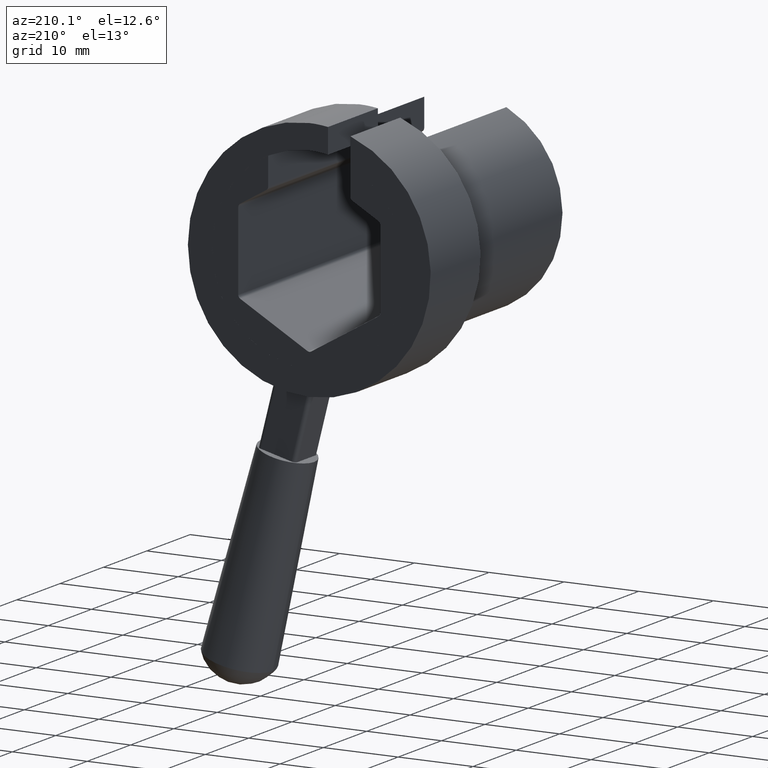
[diagram: clean part render]
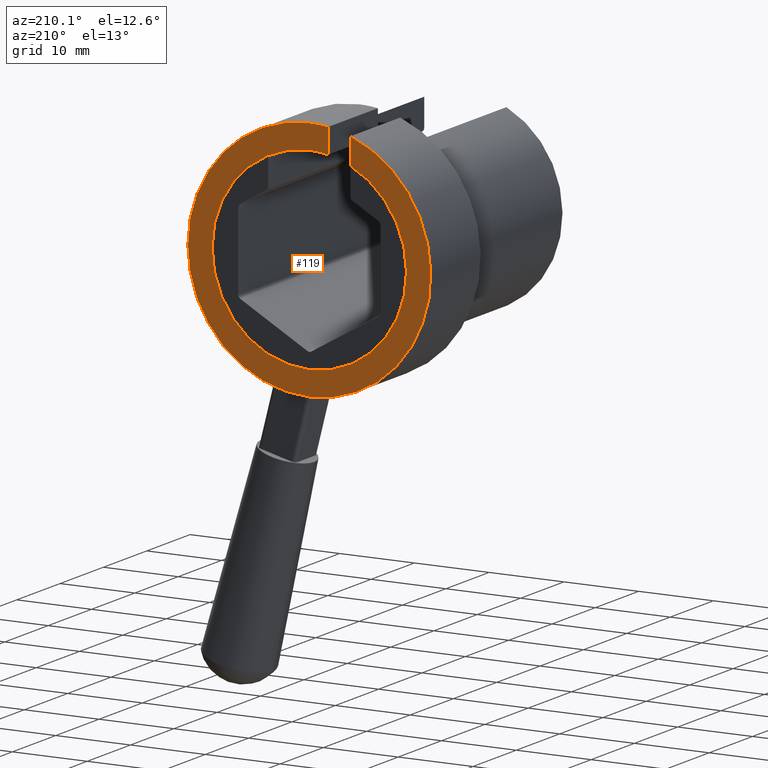
[diagram: same view with one face highlighted and labeled with its STEP entity id]
A machine part, auxiliary view. The second image highlights one B-rep face of the part: STEP entity #119.
In plain terms, the highlighted planar face has unit normal (0, 1, 0).
Its self-contained STEP definition (entity closure, byte-faithful):
#7 = EDGE_CURVE ( 'NONE', #8, #86, #461, .T. ) ;
#8 = VERTEX_POINT ( 'NONE', #450 ) ;
#20 = ORIENTED_EDGE ( 'NONE', *, *, #95, .T. ) ;
#23 = EDGE_CURVE ( 'NONE', #60, #104, #432, .T. ) ;
#34 = EDGE_CURVE ( 'NONE', #35, #88, #528, .T. ) ;
#35 = VERTEX_POINT ( 'NONE', #561 ) ;
#39 = EDGE_CURVE ( 'NONE', #86, #35, #558, .T. ) ;
#52 = ORIENTED_EDGE ( 'NONE', *, *, #100, .T. ) ;
#60 = VERTEX_POINT ( 'NONE', #607 ) ;
#61 = EDGE_CURVE ( 'NONE', #73, #60, #620, .T. ) ;
#63 = EDGE_CURVE ( 'NONE', #93, #73, #589, .T. ) ;
#73 = VERTEX_POINT ( 'NONE', #590 ) ;
#86 = VERTEX_POINT ( 'NONE', #635 ) ;
#88 = VERTEX_POINT ( 'NONE', #640 ) ;
#93 = VERTEX_POINT ( 'NONE', #656 ) ;
#95 = EDGE_CURVE ( 'NONE', #88, #93, #654, .T. ) ;
#100 = EDGE_CURVE ( 'NONE', #104, #8, #660, .T. ) ;
#104 = VERTEX_POINT ( 'NONE', #669 ) ;
#109 = ORIENTED_EDGE ( 'NONE', *, *, #23, .T. ) ;
#118 = EDGE_LOOP ( 'NONE', ( #20, #217, #218, #109, #52, #152, #166, #153 ) ) ;
#119 = ADVANCED_FACE ( 'NONE', ( #732 ), #728, .T. ) ;
#152 = ORIENTED_EDGE ( 'NONE', *, *, #7, .T. ) ;
#153 = ORIENTED_EDGE ( 'NONE', *, *, #34, .T. ) ;
#166 = ORIENTED_EDGE ( 'NONE', *, *, #39, .T. ) ;
#217 = ORIENTED_EDGE ( 'NONE', *, *, #63, .T. ) ;
#218 = ORIENTED_EDGE ( 'NONE', *, *, #61, .T. ) ;
#429 = DIRECTION ( 'NONE',  ( 0.0000000000000000000, 0.0000000000000000000, 1.000000000000000000 ) ) ;
#430 = VECTOR ( 'NONE', #429, 1000.000000000000000 ) ;
#431 = CARTESIAN_POINT ( 'NONE',  ( -2.500000000000000000, 35.99899999999999500, 12.75735082217307500 ) ) ;
#432 = LINE ( 'NONE', #431, #430 ) ;
#450 = CARTESIAN_POINT ( 'NONE',  ( 0.0000000000000000000, 35.99899999999999500, 16.24000000000000600 ) ) ;
#451 = DIRECTION ( 'NONE',  ( 0.0000000000000000000, 0.0000000000000000000, 1.000000000000000000 ) ) ;
#452 = DIRECTION ( 'NONE',  ( 0.0000000000000000000, 1.000000000000000000, 0.0000000000000000000 ) ) ;
#459 = CARTESIAN_POINT ( 'NONE',  ( 0.0000000000000000000, 35.99899999999999500, 0.0000000000000000000 ) ) ;
#460 = AXIS2_PLACEMENT_3D ( 'NONE', #459, #452, #451 ) ;
#461 = CIRCLE ( 'NONE', #460, 16.24000000000000600 ) ;
#527 = CARTESIAN_POINT ( 'NONE',  ( -5.500000000000001800, 35.99899999999999500, 11.77921898938974700 ) ) ;
#528 = LINE ( 'NONE', #527, #563 ) ;
#544 = DIRECTION ( 'NONE',  ( 0.0000000000000000000, 0.0000000000000000000, 1.000000000000000000 ) ) ;
#545 = DIRECTION ( 'NONE',  ( 0.0000000000000000000, 1.000000000000000000, 0.0000000000000000000 ) ) ;
#546 = AXIS2_PLACEMENT_3D ( 'NONE', #560, #545, #544 ) ;
#558 = CIRCLE ( 'NONE', #546, 16.24000000000000600 ) ;
#560 = CARTESIAN_POINT ( 'NONE',  ( 0.0000000000000000000, 35.99899999999999500, 0.0000000000000000000 ) ) ;
#561 = CARTESIAN_POINT ( 'NONE',  ( -5.500000000000005300, 35.99899999999999500, 15.28030104415486100 ) ) ;
#562 = DIRECTION ( 'NONE',  ( 0.0000000000000000000, 0.0000000000000000000, -1.000000000000000000 ) ) ;
#563 = VECTOR ( 'NONE', #562, 1000.000000000000000 ) ;
#586 = DIRECTION ( 'NONE',  ( 0.0000000000000000000, -1.000000000000000000, 0.0000000000000000000 ) ) ;
#587 = CARTESIAN_POINT ( 'NONE',  ( 0.0000000000000000000, 35.99899999999999500, 0.0000000000000000000 ) ) ;
#588 = AXIS2_PLACEMENT_3D ( 'NONE', #587, #586, #632 ) ;
#589 = CIRCLE ( 'NONE', #588, 13.00000000000000200 ) ;
#590 = CARTESIAN_POINT ( 'NONE',  ( 0.0000000000000000000, 35.99899999999999500, 13.00000000000000200 ) ) ;
#607 = CARTESIAN_POINT ( 'NONE',  ( -2.500000000000000000, 35.99899999999999500, 12.75735082217307500 ) ) ;
#609 = DIRECTION ( 'NONE',  ( 0.0000000000000000000, 0.0000000000000000000, 1.000000000000000000 ) ) ;
#610 = DIRECTION ( 'NONE',  ( 0.0000000000000000000, -1.000000000000000000, 0.0000000000000000000 ) ) ;
#618 = CARTESIAN_POINT ( 'NONE',  ( 0.0000000000000000000, 35.99899999999999500, 0.0000000000000000000 ) ) ;
#619 = AXIS2_PLACEMENT_3D ( 'NONE', #618, #610, #609 ) ;
#620 = CIRCLE ( 'NONE', #619, 13.00000000000000200 ) ;
#632 = DIRECTION ( 'NONE',  ( 0.0000000000000000000, 0.0000000000000000000, 1.000000000000000000 ) ) ;
#635 = CARTESIAN_POINT ( 'NONE',  ( 1.988826401815302100E-015, 35.99899999999999500, -16.24000000000000600 ) ) ;
#640 = CARTESIAN_POINT ( 'NONE',  ( -5.500000000000001800, 35.99899999999999500, 11.77921898938974700 ) ) ;
#648 = CARTESIAN_POINT ( 'NONE',  ( 0.0000000000000000000, 35.99899999999999500, 0.0000000000000000000 ) ) ;
#650 = DIRECTION ( 'NONE',  ( 0.0000000000000000000, 0.0000000000000000000, 1.000000000000000000 ) ) ;
#651 = DIRECTION ( 'NONE',  ( 0.0000000000000000000, -1.000000000000000000, 0.0000000000000000000 ) ) ;
#652 = CARTESIAN_POINT ( 'NONE',  ( 0.0000000000000000000, 35.99899999999999500, 0.0000000000000000000 ) ) ;
#653 = AXIS2_PLACEMENT_3D ( 'NONE', #652, #651, #650 ) ;
#654 = CIRCLE ( 'NONE', #653, 13.00000000000000200 ) ;
#656 = CARTESIAN_POINT ( 'NONE',  ( 1.592040838891559300E-015, 35.99899999999999500, -13.00000000000000200 ) ) ;
#657 = DIRECTION ( 'NONE',  ( 0.0000000000000000000, 0.0000000000000000000, 1.000000000000000000 ) ) ;
#658 = DIRECTION ( 'NONE',  ( 0.0000000000000000000, 1.000000000000000000, 0.0000000000000000000 ) ) ;
#659 = AXIS2_PLACEMENT_3D ( 'NONE', #648, #658, #657 ) ;
#660 = CIRCLE ( 'NONE', #659, 16.24000000000000600 ) ;
#669 = CARTESIAN_POINT ( 'NONE',  ( -2.500000000000000000, 35.99899999999999500, 16.04642016151889500 ) ) ;
#685 = DIRECTION ( 'NONE',  ( 0.0000000000000000000, 0.0000000000000000000, 1.000000000000000000 ) ) ;
#686 = DIRECTION ( 'NONE',  ( 0.0000000000000000000, 1.000000000000000000, 0.0000000000000000000 ) ) ;
#687 = CARTESIAN_POINT ( 'NONE',  ( 0.0000000000000000000, 35.99899999999999500, 0.0000000000000000000 ) ) ;
#707 = AXIS2_PLACEMENT_3D ( 'NONE', #687, #686, #685 ) ;
#728 = PLANE ( 'NONE',  #707 ) ;
#732 = FACE_OUTER_BOUND ( 'NONE', #118, .T. ) ;